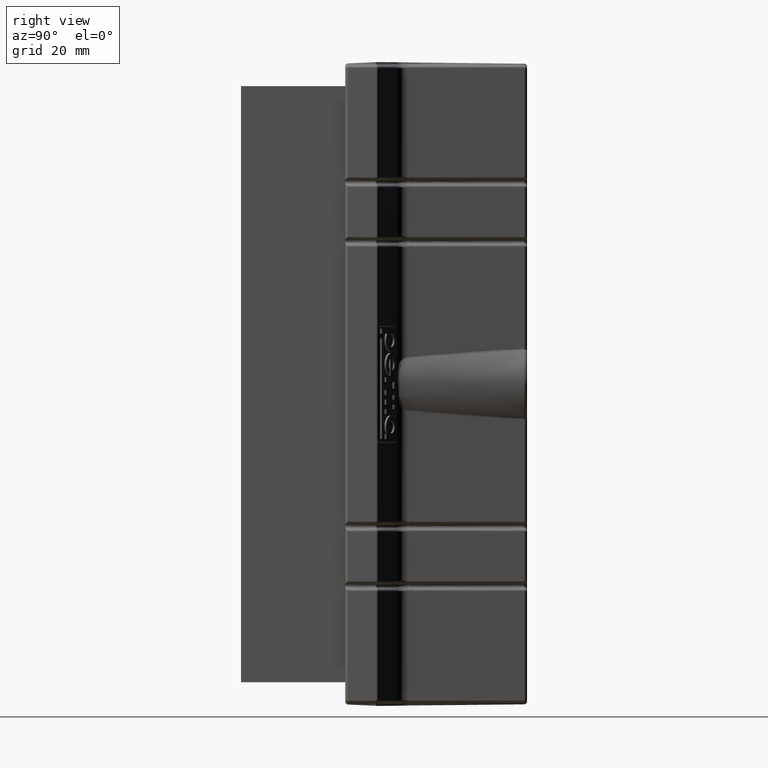
[diagram: clean part render]
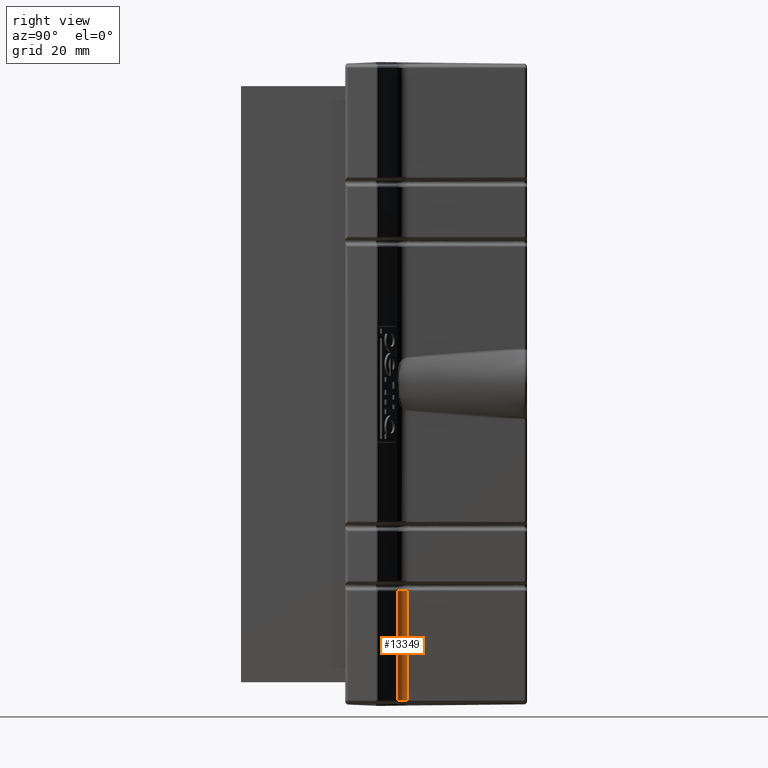
[diagram: same view with one face highlighted and labeled with its STEP entity id]
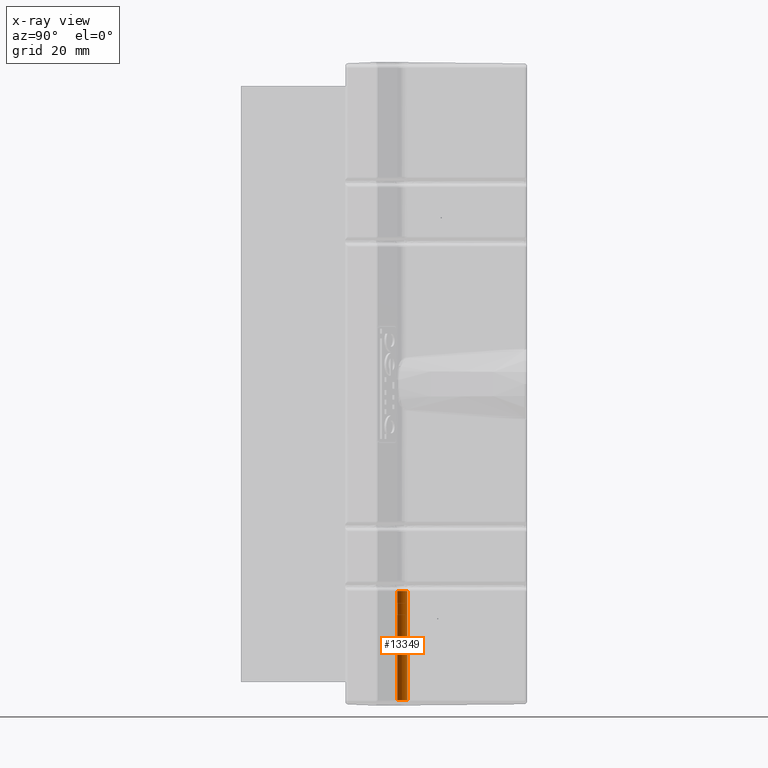
[diagram: x-ray of the same camera — body ghosted, the highlighted face saturated]
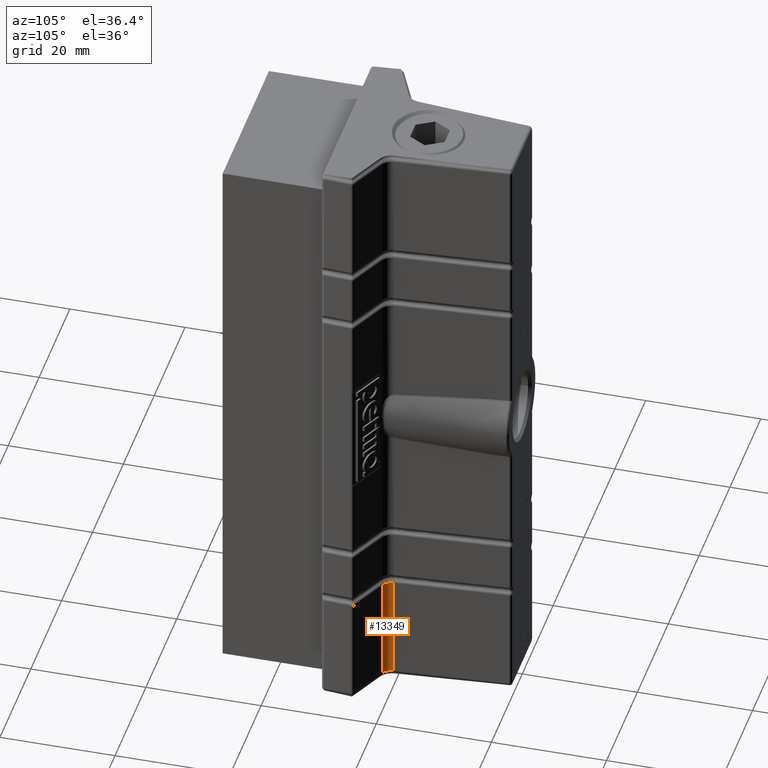
[diagram: same view with one face highlighted and labeled with its STEP entity id]
A machine part, right view. The second image highlights one B-rep face of the part: STEP entity #13349.
The next image is the same camera in x-ray: the body ghosted, the highlighted face saturated — about 0% of this face is hidden behind the body in this view.
A second angle (auxiliary view) of the same face is appended — the face is thin or edge-on in the first view.
In plain terms, the highlighted cylindrical surface (edge-blend (fillet) strip) has radius 2 mm, axis along (0, 0, -1).
Its self-contained STEP definition (entity closure, byte-faithful):
#252=CYLINDRICAL_SURFACE('',#14514,2.);
#522=LINE('',#23356,#1665);
#523=LINE('',#23363,#1666);
#1665=VECTOR('',#16273,2.);
#1666=VECTOR('',#16274,2.);
#3113=ELLIPSE('',#14510,1.48530550772331,1.36091072719304);
#3640=FACE_OUTER_BOUND('',#4521,.T.);
#4521=EDGE_LOOP('',(#10162,#10163,#10164,#10165,#10166));
#5309=B_SPLINE_CURVE_WITH_KNOTS('',3,(#23326,#23327,#23328,#23329,#23330),
 .UNSPECIFIED.,.F.,.F.,(4,1,4),(-0.264081235498111,-0.13204061774896,-0.00218102134270559),
 .UNSPECIFIED.);
#5310=B_SPLINE_CURVE_WITH_KNOTS('',3,(#23358,#23359,#23360,#23361,#23362),
 .UNSPECIFIED.,.F.,.F.,(4,1,4),(-0.26179071543014,-0.129804860872854,0.00218099368443278),
 .UNSPECIFIED.);
#6022=VERTEX_POINT('',#20491);
#6263=VERTEX_POINT('',#23270);
#6264=VERTEX_POINT('',#23293);
#6265=VERTEX_POINT('',#23355);
#6266=VERTEX_POINT('',#23357);
#7694=EDGE_CURVE('',#6263,#6264,#3113,.T.);
#7695=EDGE_CURVE('',#6264,#6022,#5309,.T.);
#7698=EDGE_CURVE('',#6263,#6265,#522,.T.);
#7699=EDGE_CURVE('',#6266,#6265,#5310,.T.);
#7700=EDGE_CURVE('',#6022,#6266,#523,.T.);
#10162=ORIENTED_EDGE('',*,*,#7695,.F.);
#10163=ORIENTED_EDGE('',*,*,#7694,.F.);
#10164=ORIENTED_EDGE('',*,*,#7698,.T.);
#10165=ORIENTED_EDGE('',*,*,#7699,.F.);
#10166=ORIENTED_EDGE('',*,*,#7700,.F.);
#13349=ADVANCED_FACE('',(#3640),#252,.F.);
#14510=AXIS2_PLACEMENT_3D('',#23300,#16263,#16264);
#14514=AXIS2_PLACEMENT_3D('',#23354,#16271,#16272);
#16263=DIRECTION('center_axis',(-0.247866334315417,-0.531551727922626,-0.809947554385781));
#16264=DIRECTION('ref_axis',(0.88622867753967,-0.462135934412423,0.0320797324029293));
#16271=DIRECTION('center_axis',(0.,0.,-1.));
#16272=DIRECTION('ref_axis',(0.422618261740699,0.90630778703665,0.));
#16273=DIRECTION('',(0.,0.,-1.));
#16274=DIRECTION('',(0.,0.,-1.));
#20491=CARTESIAN_POINT('',(8.38442072915826,-17.5907175872556,-0.995629153832861));
#23270=CARTESIAN_POINT('',(9.53301765562046,-19.2464151382153,-0.995579572154486));
#23293=CARTESIAN_POINT('',(9.51802773830283,-19.2393494722171,-0.995629223057872));
#23300=CARTESIAN_POINT('Origin',(9.98611513845736,-18.241133921241,-1.79398506962294));
#23326=CARTESIAN_POINT('Ctrl Pts',(9.51802773836887,-19.2393494722486,-0.995629153833134));
#23327=CARTESIAN_POINT('Ctrl Pts',(9.20015316834787,-19.0879030299537,-0.995629153833109));
#23328=CARTESIAN_POINT('Ctrl Pts',(8.65148618566203,-18.6171076395975,-0.995629153833031));
#23329=CARTESIAN_POINT('Ctrl Pts',(8.41166216042559,-17.9359282467255,-0.995629153832918));
#23330=CARTESIAN_POINT('Ctrl Pts',(8.38442134642053,-17.5907176108135,-0.995629153832861));
#23354=CARTESIAN_POINT('Origin',(10.3782541791019,-17.433799564142,37.501));
#23355=CARTESIAN_POINT('',(9.53301765562046,-19.2464151382153,-19.264370846159));
#23356=CARTESIAN_POINT('',(9.53301765562046,-19.2464151382153,37.501));
#23357=CARTESIAN_POINT('',(8.38441951163565,-17.5907177555977,-19.2643708461591));
#23358=CARTESIAN_POINT('Ctrl Pts',(8.38441951163565,-17.5907177555977,-19.2643708461591));
#23359=CARTESIAN_POINT('Ctrl Pts',(8.41203415202837,-17.9415950301434,-19.2643708461591));
#23360=CARTESIAN_POINT('Ctrl Pts',(8.65708676115772,-18.6278174431114,-19.2643708461591));
#23361=CARTESIAN_POINT('Ctrl Pts',(9.21403129370058,-19.097669354805,-19.264370846159));
#23362=CARTESIAN_POINT('Ctrl Pts',(9.53301765562046,-19.2464151382153,-19.264370846159));
#23363=CARTESIAN_POINT('',(8.38441951163565,-17.5907177555977,37.501));